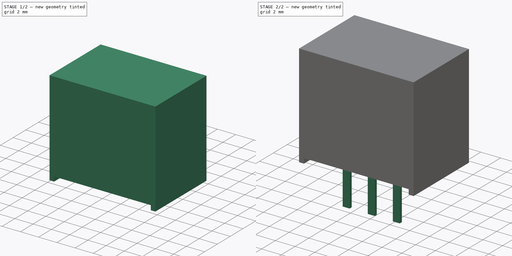
[diagram: build sequence overview — one tinted view per stage of 2, left to right]
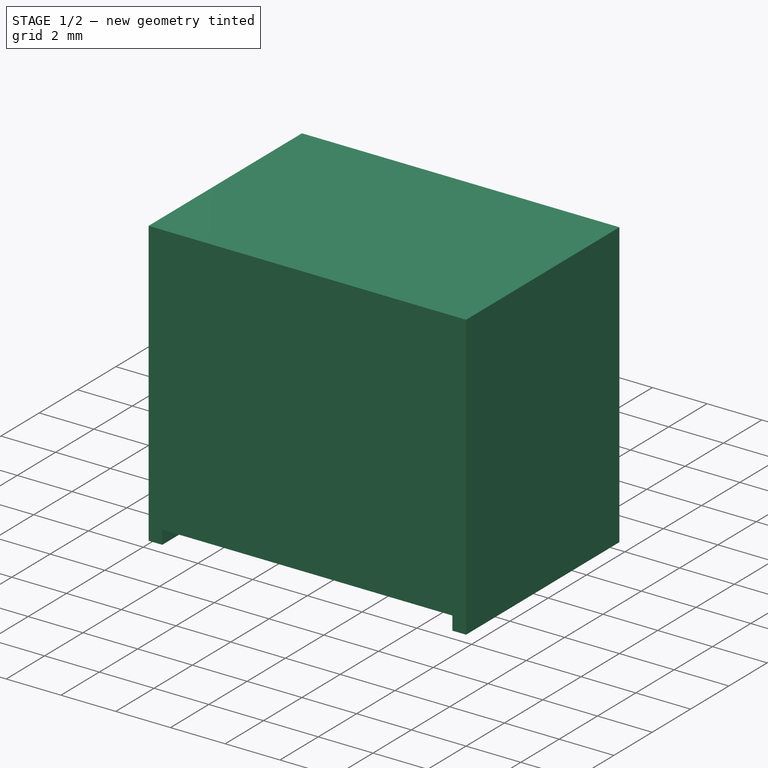
[diagram: stage 1 of 2 — iso view after this stage's code; geometry added in this stage tinted green]
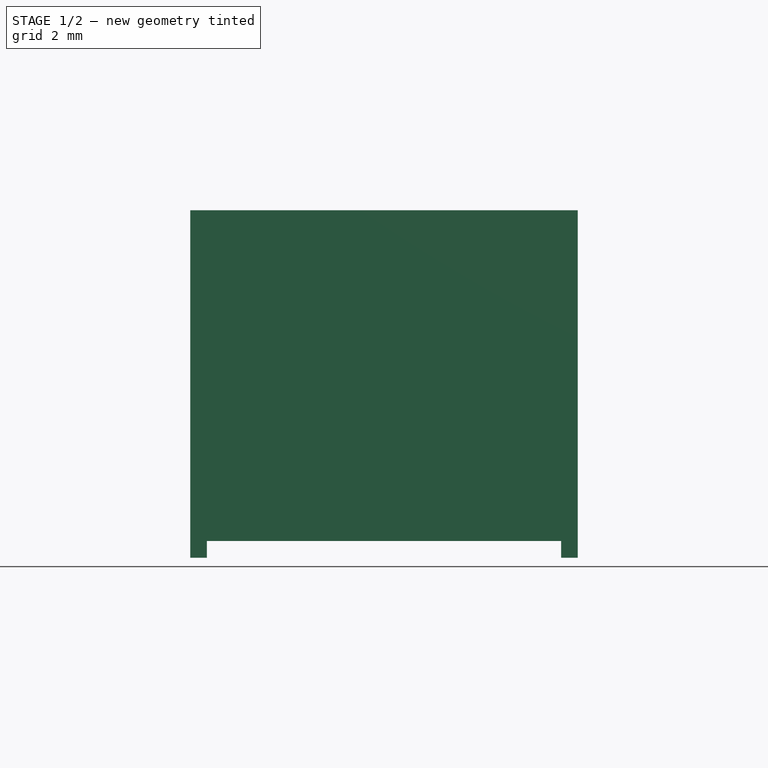
[diagram: stage 1 of 2 — front view after this stage's code; geometry added in this stage tinted green]
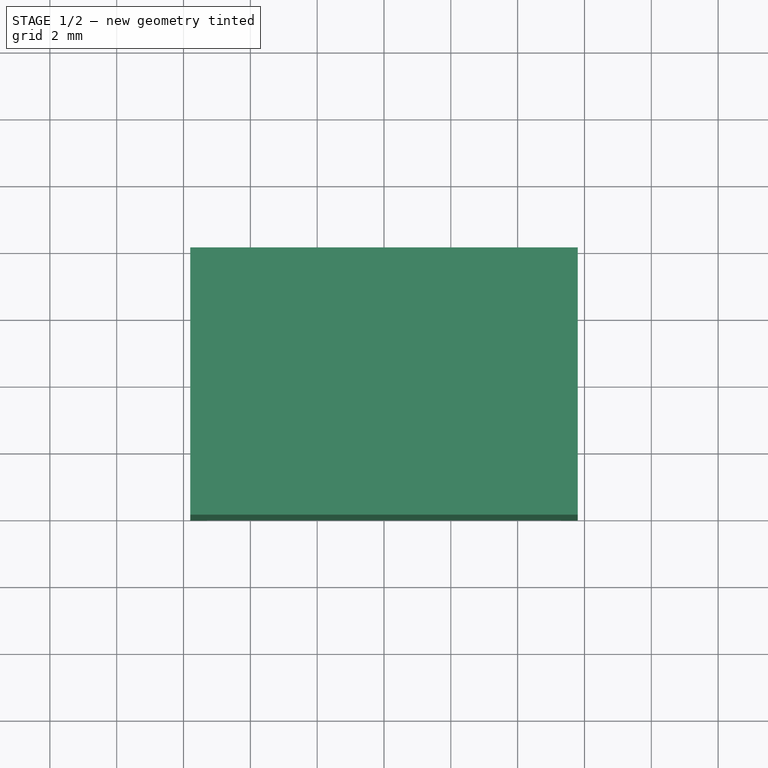
[diagram: stage 1 of 2 — top view after this stage's code; geometry added in this stage tinted green]
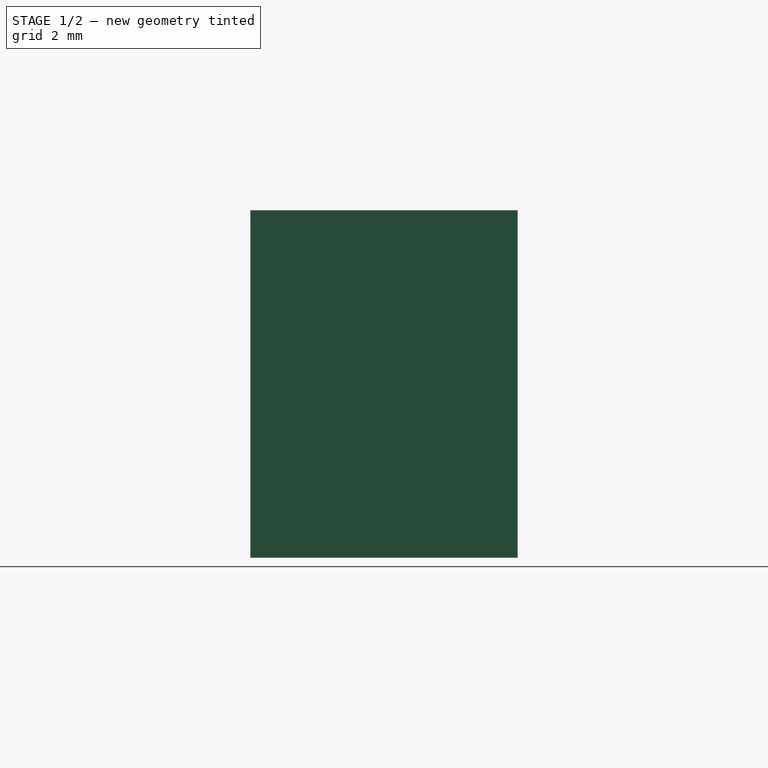
[diagram: stage 1 of 2 — right view after this stage's code; geometry added in this stage tinted green]
FCSTD DOCUMENT  (FreeCAD 1.0R39319 (Git))
Label: K7805M-1000R3
License: All rights reserved
LicenseURL: http://en.wikipedia.org/wiki/All_rights_reserved
objects: Sketcher::SketchObject×2, PartDesign::Pad×2, PartDesign::Body×1
note: 11 computed .brp shape members not serialized (recipe doc carries the construction recipe); baked Part::Feature solids carry a one-line shape summary decoded from their .brp

FEATURE [Sketcher::SketchObject] Sketch
  ArcFitTolerance = 1e-06
  AttachmentSupport = -> [XZ_Plane]
  FullyConstrained = true
  MakeInternals = false
  MapMode = 5
  Placement = pos=(0,0,0) rot=(1,0,0;1.5708rad)
  sketch-geometry (8):
    g0: LineSegment StartX=-5.3 StartY=-5.2 StartZ=0 EndX=-5.3 EndY=-4.7 EndZ=0
    g1: LineSegment StartX=-5.3 StartY=-4.7 StartZ=0 EndX=5.3 EndY=-4.7 EndZ=0
    g2: LineSegment StartX=5.3 StartY=-4.7 StartZ=0 EndX=5.3 EndY=-5.2 EndZ=0
    g3: LineSegment StartX=5.3 StartY=-5.2 StartZ=0 EndX=5.8 EndY=-5.2 EndZ=0
    g4: LineSegment StartX=5.8 StartY=-5.2 StartZ=0 EndX=5.8 EndY=5.2 EndZ=0
    g5: LineSegment StartX=5.8 StartY=5.2 StartZ=0 EndX=-5.8 EndY=5.2 EndZ=0
    g6: LineSegment StartX=-5.8 StartY=5.2 StartZ=0 EndX=-5.8 EndY=-5.2 EndZ=0
    g7: LineSegment StartX=-5.8 StartY=-5.2 StartZ=0 EndX=-5.3 EndY=-5.2 EndZ=0
  constraints (23):
    c: Coincident(g0,g1)
    c: Horizontal(g1)
    c: Coincident(g1,g2)
    c: Coincident(g2,g3)
    c: Horizontal(g3)
    c: Coincident(g3,g4)
    c: Vertical(g4)
    c: Coincident(g4,g5)
    c: Horizontal(g5)
    c: Coincident(g5,g6)
    c: Coincident(g6,g7)
    c: Coincident(g7,g0)
    c: Horizontal(g7)
    c: Vertical(g0)
    c: Vertical(g2)
    c: Vertical(g6)
    c: Equal(g7,g3)
    c: DistanceY(g4,g4) = 10.4
    c: DistanceY(g2,g2) = 0.5
    c: Distance(g3,g3) = 0.5
    c: Equal(g2,g0)
    c: DistanceX(g5,g5) = 11.6
    c: Symmetric(g3,g5,g-1)
FEATURE [PartDesign::Pad] Pad
  Direction = (0,-1,2e-16)
  Length = 8
  Length2 = 10
  Midplane = true
  Placement = pos=(0,0,0) rot=(1,0,0;1.5708rad)
  Profile = -> Sketch
  ReferenceAxis = -> Sketch [N_Axis]
  Suppressed = false
  Type = 0
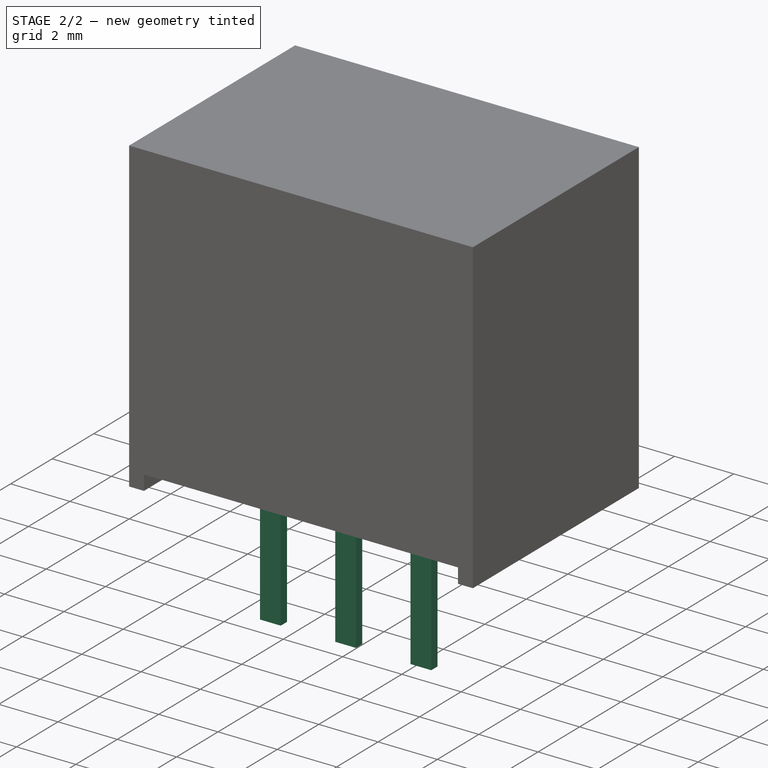
[diagram: stage 2 of 2 — iso view after this stage's code; geometry added in this stage tinted green]
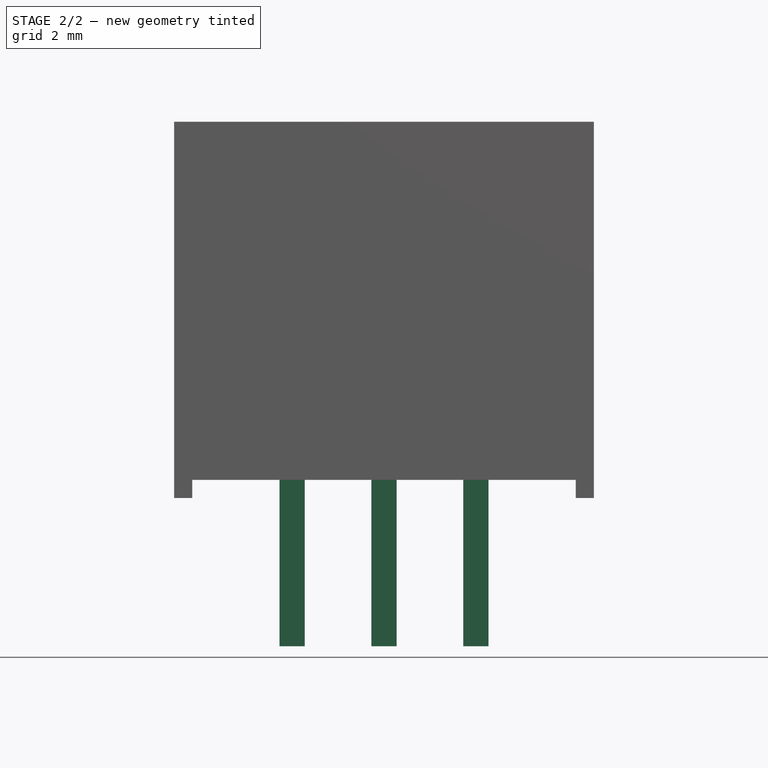
[diagram: stage 2 of 2 — front view after this stage's code; geometry added in this stage tinted green]
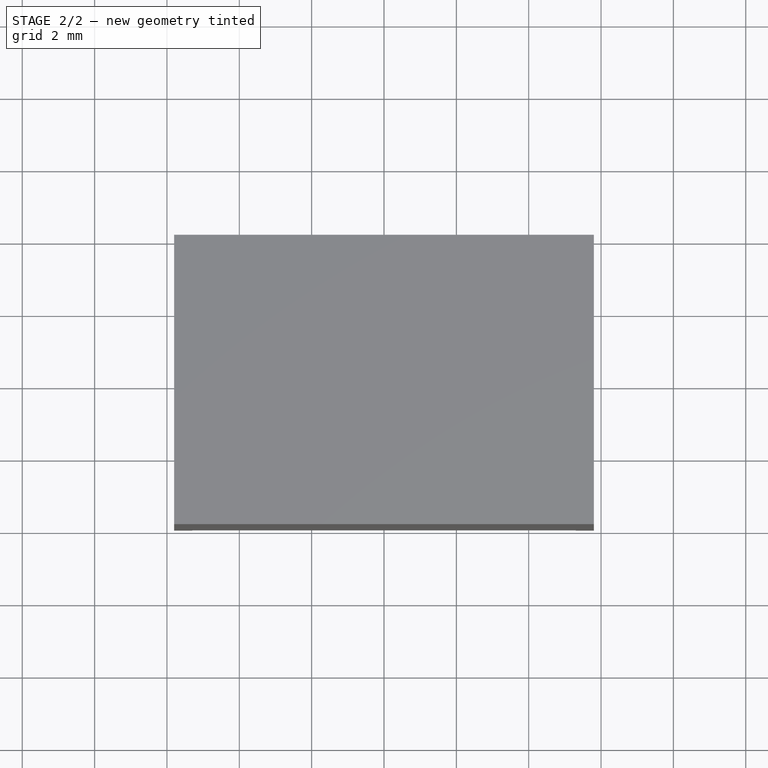
[diagram: stage 2 of 2 — top view after this stage's code; geometry added in this stage tinted green]
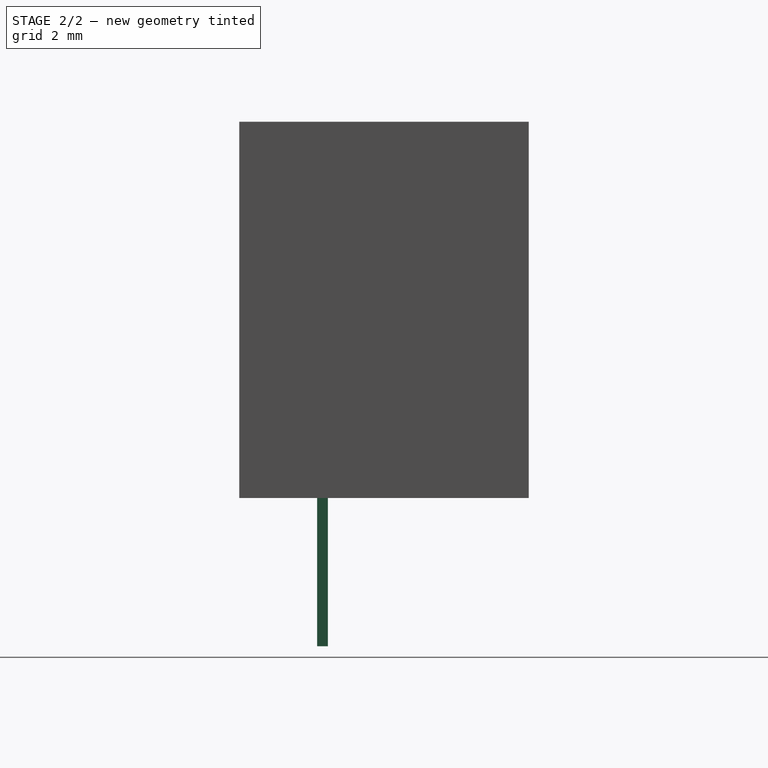
[diagram: stage 2 of 2 — right view after this stage's code; geometry added in this stage tinted green]
FEATURE [Sketcher::SketchObject] Sketch001
  ArcFitTolerance = 1e-06
  AttachmentSupport = -> [Pad]
  ExternalGeometry = -> [Pad]
  FullyConstrained = true
  MakeInternals = false
  MapMode = 5
  Placement = pos=(0,-1e-15,-4.7) rot=(1,0,0;3.14159rad)
  sketch-geometry (15):
    g0: LineSegment StartX=-2.89 StartY=1.85 StartZ=0 EndX=-2.89 EndY=1.55 EndZ=0
    g1: LineSegment StartX=-2.89 StartY=1.55 StartZ=0 EndX=-2.19 EndY=1.55 EndZ=0
    g2: LineSegment StartX=-2.19 StartY=1.55 StartZ=0 EndX=-2.19 EndY=1.85 EndZ=0
    g3: LineSegment StartX=-2.19 StartY=1.85 StartZ=0 EndX=-2.89 EndY=1.85 EndZ=0
    g4: LineSegment StartX=-0.35 StartY=1.85 StartZ=0 EndX=-0.35 EndY=1.55 EndZ=0
    g5: LineSegment StartX=-0.35 StartY=1.55 StartZ=0 EndX=0.35 EndY=1.55 EndZ=0
    g6: LineSegment StartX=0.35 StartY=1.55 StartZ=0 EndX=0.35 EndY=1.85 EndZ=0
    g7: LineSegment StartX=0.35 StartY=1.85 StartZ=0 EndX=-0.35 EndY=1.85 EndZ=0
    g8: LineSegment StartX=2.19 StartY=1.85 StartZ=0 EndX=2.19 EndY=1.55 EndZ=0
    g9: LineSegment StartX=2.19 StartY=1.55 StartZ=0 EndX=2.89 EndY=1.55 EndZ=0
    g10: LineSegment StartX=2.89 StartY=1.55 StartZ=0 EndX=2.89 EndY=1.85 EndZ=0
    g11: LineSegment StartX=2.89 StartY=1.85 StartZ=0 EndX=2.19 EndY=1.85 EndZ=0
    g12: LineSegment [constr] StartX=-2.19 StartY=1.7 StartZ=0 EndX=-0.35 EndY=1.7 EndZ=0
    g13: LineSegment [constr] StartX=0.35 StartY=1.7 StartZ=0 EndX=2.19 EndY=1.7 EndZ=0
    g14: GeomPoint X=0 Y=1.85 Z=0
  constraints (41):
    c: Coincident(g0,g1)
    c: Coincident(g1,g2)
    c: Coincident(g2,g3)
    c: Coincident(g3,g0)
    c: Vertical(g0)
    c: Vertical(g2)
    c: Horizontal(g1)
    c: Horizontal(g3)
    c: Coincident(g4,g5)
    c: Coincident(g5,g6)
    c: Coincident(g6,g7)
    c: Coincident(g7,g4)
    c: Vertical(g4)
    c: Vertical(g6)
    c: Horizontal(g5)
    c: Horizontal(g7)
    c: Coincident(g8,g9)
    c: Coincident(g9,g10)
    c: Coincident(g10,g11)
    c: Coincident(g11,g8)
    c: Vertical(g8)
    c: Vertical(g10)
    c: Horizontal(g9)
    c: Horizontal(g11)
    c: Horizontal(g12)
    c: Horizontal(g13)
    c: Symmetric(g2,g1,g12)
    c: Symmetric(g4,g4,g12)
    c: Symmetric(g6,g5,g13)
    c: Symmetric(g8,g8,g13)
    c: Equal(g3,g7)
    c: Equal(g7,g11)
    c: Equal(g0,g4)
    c: Equal(g4,g8)
    c: DistanceX(g11,g11) = 0.7
    c: DistanceY(g10,g10) = 0.3
    c: PointOnObject(g14,g-2)
    c: Symmetric(g4,g6,g14)
    c: DistanceX(g0,g4) = 2.54
    c: Equal(g12,g13)
    c: Distance(g-3,g13) = 2.3
FEATURE [PartDesign::Pad] Pad001
  BaseFeature = -> Pad
  Direction = (0,0,-1)
  Length = 4.6
  Length2 = 10
  Placement = pos=(0,0,0) rot=(1,0,0;1.5708rad)
  Profile = -> Sketch001
  ReferenceAxis = -> Sketch001 [N_Axis]
  Suppressed = false
  Type = 0
FEATURE [PartDesign::Body] Body
  AllowCompound = false
  Group = -> [Sketch,Pad,Sketch001,Pad001]
  Origin = -> Origin
  Tip = -> Pad001
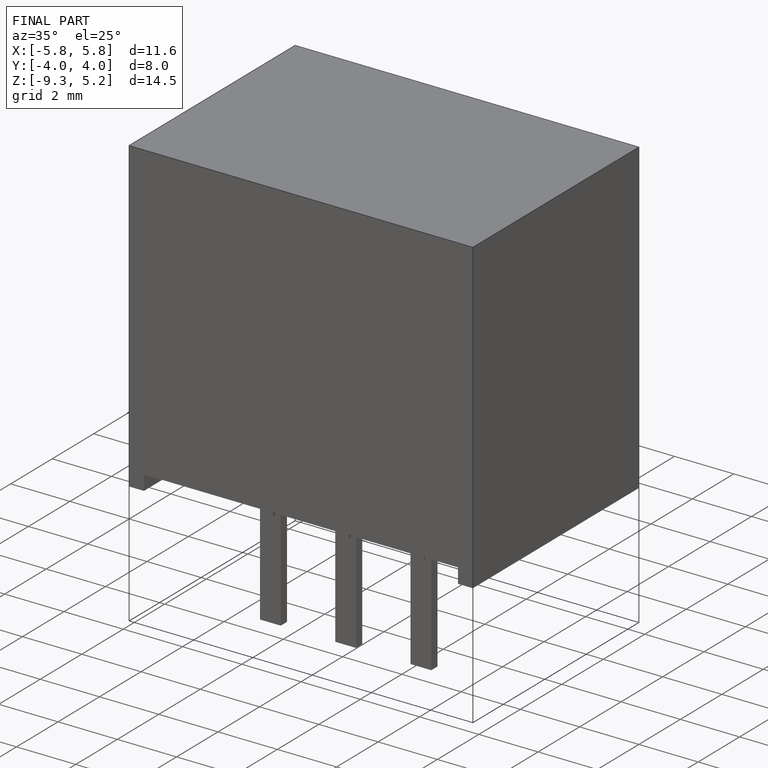
[diagram: finished part — iso view with bounding-box wireframe]
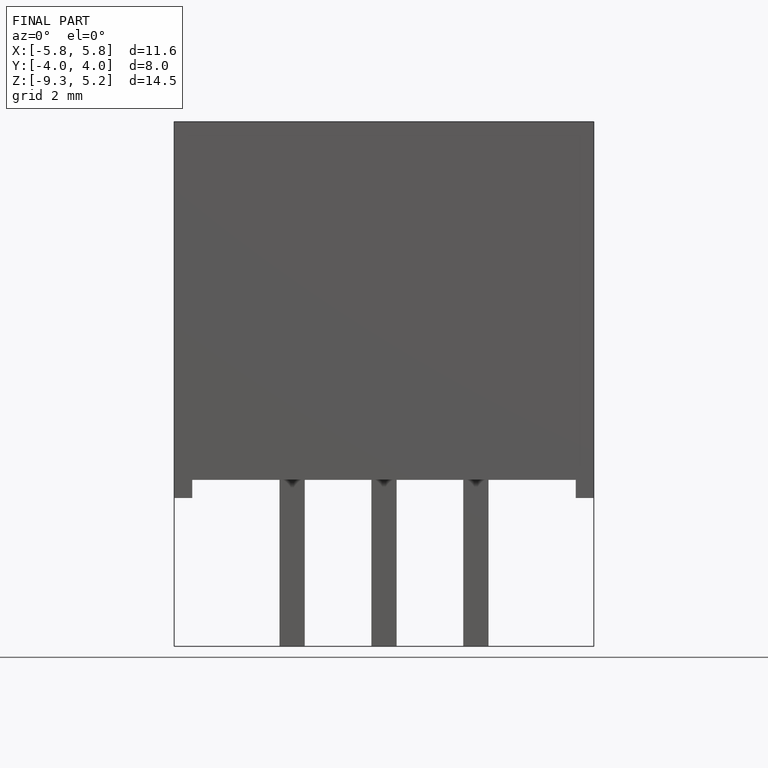
[diagram: finished part — front view with bounding-box wireframe]
